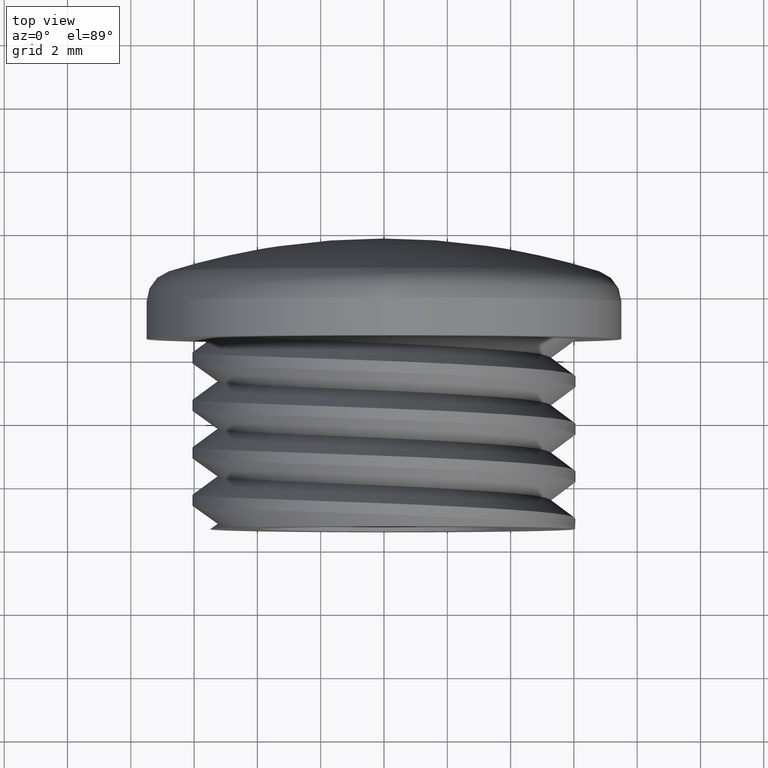
[diagram: clean part render]
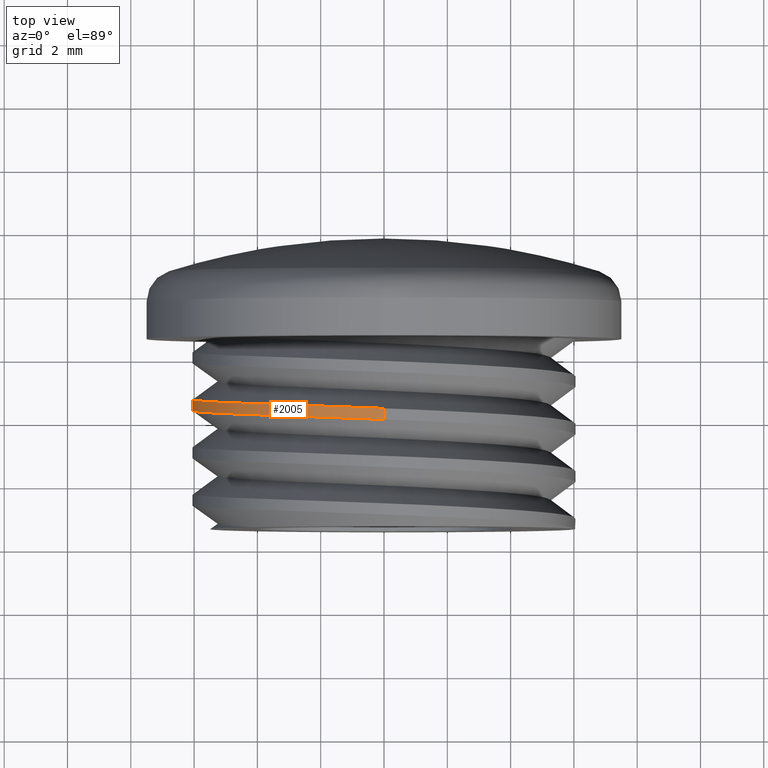
[diagram: same view with one face highlighted and labeled with its STEP entity id]
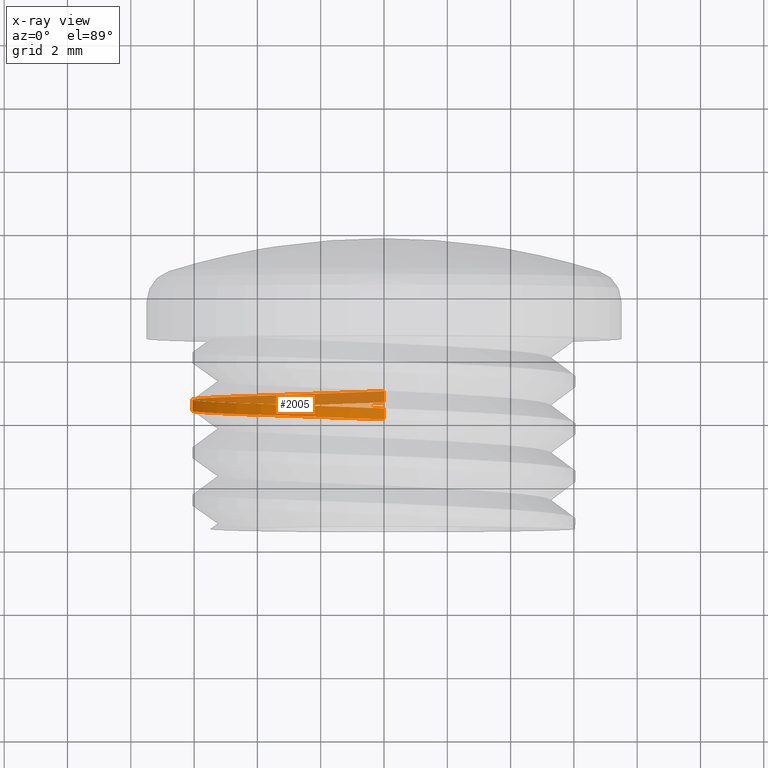
[diagram: x-ray of the same camera — body ghosted, the highlighted face saturated]
A machine part, top view. The second image highlights one B-rep face of the part: STEP entity #2005.
The next image is the same camera in x-ray: the body ghosted, the highlighted face saturated — about 44% of this face is hidden behind the body in this view.
In plain terms, the highlighted cylindrical surface (partial cylindrical patch) has radius 6.05 mm, axis along (-0, -1, -0).
Its self-contained STEP definition (entity closure, byte-faithful):
#1100 = LINE ( 'NONE', #1101, #2147 ) ;
#1101 = CARTESIAN_POINT ( 'NONE',  ( 0.0000000000000000000, 0.0000000000000000000, -6.049999999999999800 ) ) ;
#1109 = DIRECTION ( 'NONE',  ( -0.0000000000000000000, -1.000000000000000000, -0.0000000000000000000 ) ) ;
#1153 = CARTESIAN_POINT ( 'NONE',  ( -1.382972892286990700E-012, 4.300126109347012000, 6.050000000000000700 ) ) ;
#1183 = CARTESIAN_POINT ( 'NONE',  ( -6.049999999999995400, 4.768876109346964000, -2.505992052357224300 ) ) ;
#1184 = CARTESIAN_POINT ( 'NONE',  ( -6.049999999999995400, 4.581376109346964000, 2.505992052357221700 ) ) ;
#1185 = CARTESIAN_POINT ( 'NONE',  ( -8.632929976661989300E-013, 5.050126109346927600, -6.049999999999999800 ) ) ;
#1190 = CARTESIAN_POINT ( 'NONE',  ( -6.049999999999993600, 4.675126109346964000, -7.409113134841479600E-016 ) ) ;
#1191 = CARTESIAN_POINT ( 'NONE',  ( -4.277996026178609400, 4.487626109346965800, 4.277996026178608500 ) ) ;
#1199 = CARTESIAN_POINT ( 'NONE',  ( -2.505992052358325700, 4.956376109346904500, -6.049999999998891400 ) ) ;
#1216 = CARTESIAN_POINT ( 'NONE',  ( -2.505992052358545100, 4.393876109347035100, 6.049999999998677300 ) ) ;
#1219 = CARTESIAN_POINT ( 'NONE',  ( -4.277996026178608500, 4.862626109346964900, -4.277996026178608500 ) ) ;
#1228 = CARTESIAN_POINT ( 'NONE',  ( -6.049999999999993600, 4.231123890653036000, 2.505992052357220800 ) ) ;
#1231 = CARTESIAN_POINT ( 'NONE',  ( -4.277996026178608500, 4.137373890653035100, 4.277996026178607600 ) ) ;
#1237 = CARTESIAN_POINT ( 'NONE',  ( -2.505992052355886700, 4.043623890652964900, 6.050000000001333000 ) ) ;
#1246 = CARTESIAN_POINT ( 'NONE',  ( 3.704556567420743300E-016, 4.699873890653040400, -6.049999999999999800 ) ) ;
#1255 = CARTESIAN_POINT ( 'NONE',  ( 1.430102355679205900E-012, 3.949873890652986700, 6.049999999999999800 ) ) ;
#1261 = CARTESIAN_POINT ( 'NONE',  ( -6.049999999999993600, 4.418623890653036800, -2.505992052357223900 ) ) ;
#1264 = CARTESIAN_POINT ( 'NONE',  ( -6.049999999999992700, 4.324873890653035100, -7.409113134841478600E-016 ) ) ;
#1273 = CARTESIAN_POINT ( 'NONE',  ( -4.277996026178607600, 4.512373890653036000, -4.277996026178607600 ) ) ;
#1283 = CARTESIAN_POINT ( 'NONE',  ( -2.505992052357221700, 4.606123890653035100, -6.049999999999993600 ) ) ;
#1294 = CYLINDRICAL_SURFACE ( 'NONE', #2166, 6.049999999999999800 ) ;
#1297 = FACE_OUTER_BOUND ( 'NONE', #1617, .T. ) ;
#1317 = DIRECTION ( 'NONE',  ( 0.0000000000000000000, 0.0000000000000000000, -1.000000000000000000 ) ) ;
#1324 = CARTESIAN_POINT ( 'NONE',  ( 0.0000000000000000000, 0.0000000000000000000, 0.0000000000000000000 ) ) ;
#1331 = DIRECTION ( 'NONE',  ( -0.0000000000000000000, -1.000000000000000000, -0.0000000000000000000 ) ) ;
#1344 = DIRECTION ( 'NONE',  ( -0.0000000000000000000, -1.000000000000000000, -0.0000000000000000000 ) ) ;
#1346 = LINE ( 'NONE', #1376, #2182 ) ;
#1376 = CARTESIAN_POINT ( 'NONE',  ( 7.409113134841486500E-016, 0.0000000000000000000, 6.049999999999999800 ) ) ;
#1617 = EDGE_LOOP ( 'NONE', ( #1707, #1633, #1725, #1670 ) ) ;
#1633 = ORIENTED_EDGE ( 'NONE', *, *, #1985, .T. ) ;
#1670 = ORIENTED_EDGE ( 'NONE', *, *, #1998, .T. ) ;
#1707 = ORIENTED_EDGE ( 'NONE', *, *, #2013, .F. ) ;
#1725 = ORIENTED_EDGE ( 'NONE', *, *, #1971, .T. ) ;
#1764 = VERTEX_POINT ( 'NONE', #1826 ) ;
#1805 = VERTEX_POINT ( 'NONE', #1817 ) ;
#1815 = VERTEX_POINT ( 'NONE', #1823 ) ;
#1817 = CARTESIAN_POINT ( 'NONE',  ( 1.430102355679205900E-012, 3.949873890652986700, 6.049999999999999800 ) ) ;
#1823 = CARTESIAN_POINT ( 'NONE',  ( -8.632929976661989300E-013, 5.050126109346927600, -6.049999999999999800 ) ) ;
#1825 = VERTEX_POINT ( 'NONE', #1837 ) ;
#1826 = CARTESIAN_POINT ( 'NONE',  ( 3.704556567420743300E-016, 4.699873890653040400, -6.049999999999999800 ) ) ;
#1837 = CARTESIAN_POINT ( 'NONE',  ( -1.382972892286990700E-012, 4.300126109347012000, 6.050000000000000700 ) ) ;
#1971 = EDGE_CURVE ( 'NONE', #1815, #1764, #1100, .T. ) ;
#1985 = EDGE_CURVE ( 'NONE', #1825, #1815, #2077, .T. ) ;
#1998 = EDGE_CURVE ( 'NONE', #1764, #1805, #2070, .T. ) ;
#2005 = ADVANCED_FACE ( 'NONE', ( #1297 ), #1294, .T. ) ;
#2013 = EDGE_CURVE ( 'NONE', #1825, #1805, #1346, .T. ) ;
#2070 =( BOUNDED_CURVE ( )  B_SPLINE_CURVE ( 2, ( #1246, #1283, #1273, #1261, #1264, #1228, #1231, #1237, #1255 ),
 .UNSPECIFIED., .F., .T. ) 
 B_SPLINE_CURVE_WITH_KNOTS ( ( 3, 2, 2, 2, 3 ),
 ( -0.09462975762742895100, -0.08989828492826992800, -0.08516681222911093300, -0.08043533952995191000, -0.07570386683079288700 ),
 .UNSPECIFIED. ) 
 CURVE ( )  GEOMETRIC_REPRESENTATION_ITEM ( )  RATIONAL_B_SPLINE_CURVE ( ( 1.000000000000000000, 0.9238795325112868500, 1.000000000000000000, 0.9238795325112868500, 1.000000000000000000, 0.9238795325112868500, 1.000000000000000000, 0.9238795325112336700, 1.000000000000053100 ) ) 
 REPRESENTATION_ITEM ( '' )  );
#2077 =( BOUNDED_CURVE ( )  B_SPLINE_CURVE ( 2, ( #1153, #1216, #1191, #1184, #1190, #1183, #1219, #1199, #1185 ),
 .UNSPECIFIED., .F., .T. ) 
 B_SPLINE_CURVE_WITH_KNOTS ( ( 3, 2, 2, 2, 3 ),
 ( 0.09359972101373353900, 0.09833125267480652400, 0.1030627843358795400, 0.1077943159969525400, 0.1125258476580255200 ),
 .UNSPECIFIED. ) 
 CURVE ( )  GEOMETRIC_REPRESENTATION_ITEM ( )  RATIONAL_B_SPLINE_CURVE ( ( 0.9999999999999477100, 0.9238795325113390300, 1.000000000000000000, 0.9238795325112867400, 1.000000000000000000, 0.9238795325112867400, 1.000000000000000000, 0.9238795325113305900, 0.9999999999999561500 ) ) 
 REPRESENTATION_ITEM ( '' )  );
#2147 = VECTOR ( 'NONE', #1109, 1000.000000000000000 ) ;
#2166 = AXIS2_PLACEMENT_3D ( 'NONE', #1324, #1331, #1317 ) ;
#2182 = VECTOR ( 'NONE', #1344, 1000.000000000000000 ) ;